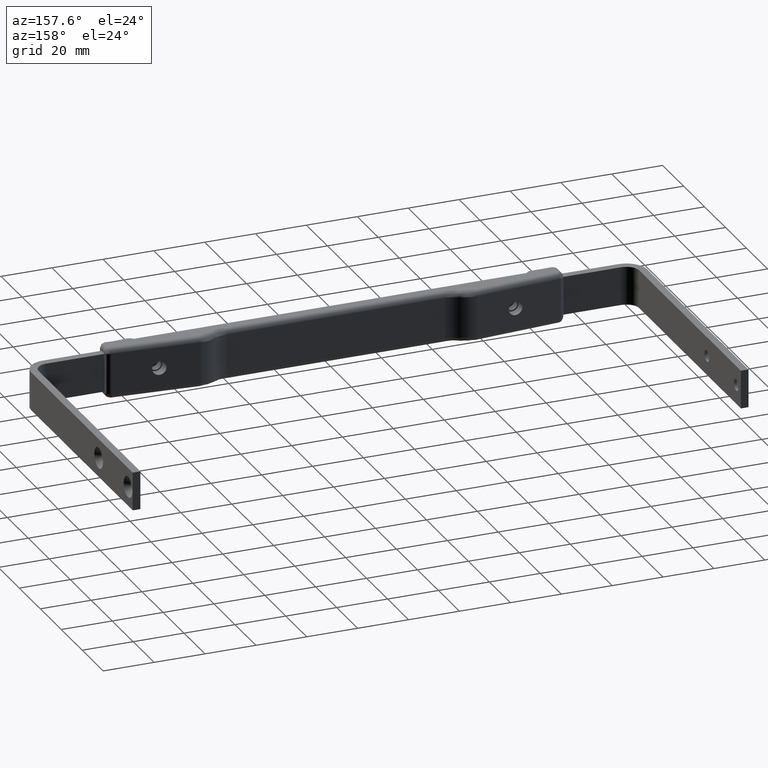
[diagram: clean part render]
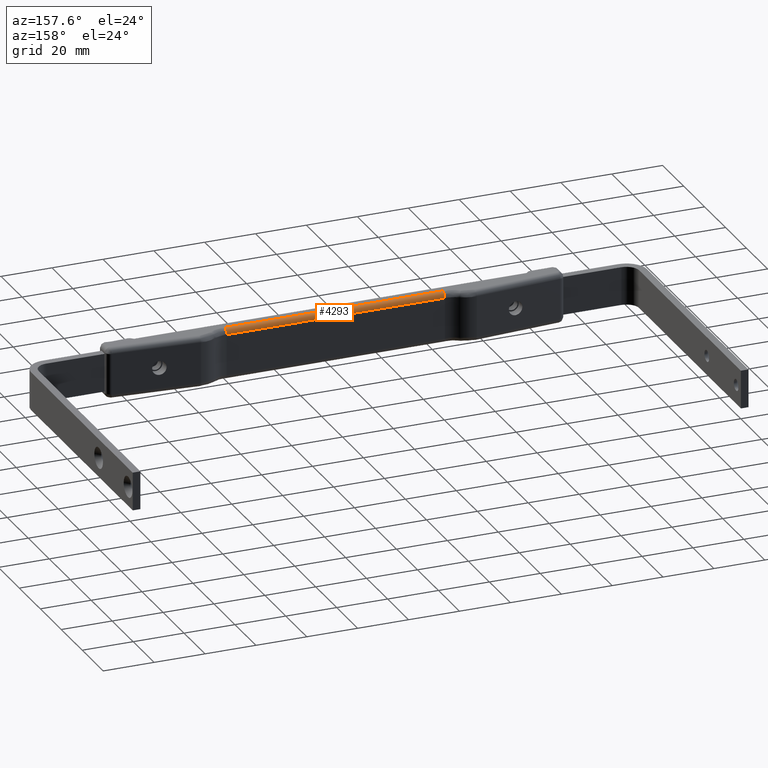
[diagram: same view with one face highlighted and labeled with its STEP entity id]
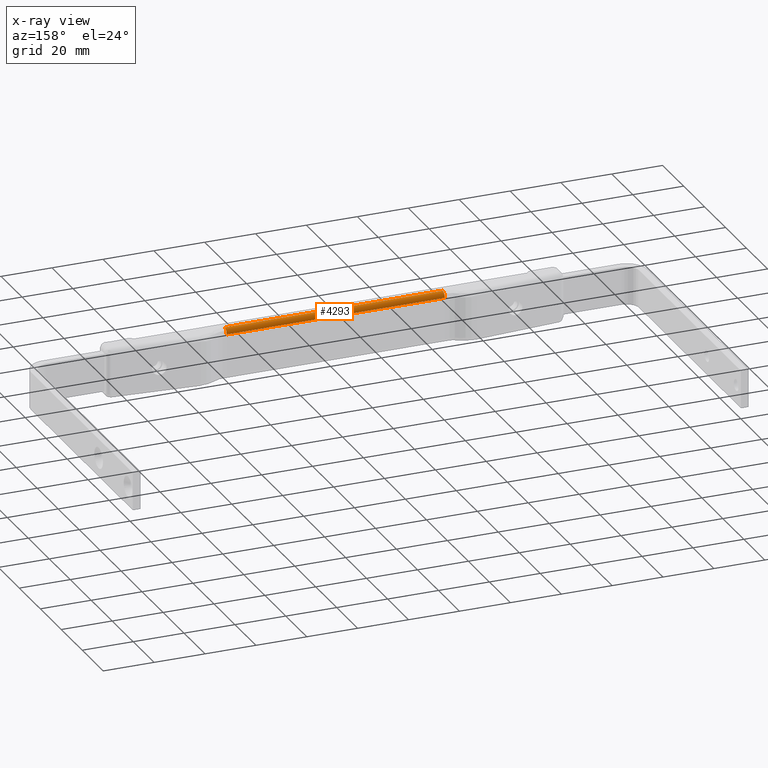
[diagram: x-ray of the same camera — body ghosted, the highlighted face saturated]
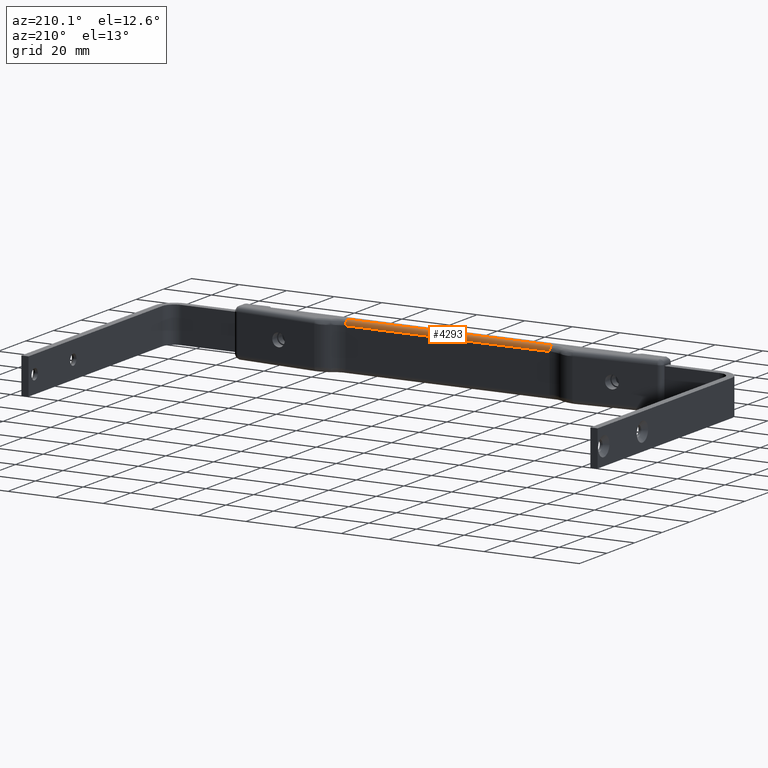
[diagram: same view with one face highlighted and labeled with its STEP entity id]
A machine part, auxiliary view. The second image highlights one B-rep face of the part: STEP entity #4293.
The next image is the same camera in x-ray: the body ghosted, the highlighted face saturated — about 0% of this face is hidden behind the body in this view.
A second angle (auxiliary view) of the same face is appended — the face is thin or edge-on in the first view.
In plain terms, the highlighted face is a freeform B-spline surface patch.
Its self-contained STEP definition (entity closure, byte-faithful):
#4202=CARTESIAN_POINT('',(-42.858346247147253,10.0,-3.0));
#4203=VERTEX_POINT('',#4202);
#4204=CARTESIAN_POINT('',(-42.858346247147253,8.0,-5.0));
#4205=VERTEX_POINT('',#4204);
#4206=CARTESIAN_POINT('',(-42.858346247147253,10.0,-3.0));
#4207=CARTESIAN_POINT('',(-42.858346247147246,10.000000000000002,-5.000000000000001));
#4208=CARTESIAN_POINT('',(-42.858346247147253,8.0,-5.0));
#4216=(BOUNDED_CURVE()B_SPLINE_CURVE(2,(#4206,#4207,#4208),.UNSPECIFIED.,.F.,.U.)CURVE()GEOMETRIC_REPRESENTATION_ITEM()QUASI_UNIFORM_CURVE()RATIONAL_B_SPLINE_CURVE((1.0,0.707106781186548,1.0))REPRESENTATION_ITEM(''));
#4217=EDGE_CURVE('',#4203,#4205,#4216,.T.);
#4249=CARTESIAN_POINT('',(-45.001263559504622,9.999314649951113,-2.947646103384253));
#4250=CARTESIAN_POINT('',(45.054836492313541,9.999314649951113,-2.947646103384253));
#4251=CARTESIAN_POINT('',(-45.001263559504615,10.056984520332525,-5.149969601109443));
#4252=CARTESIAN_POINT('',(45.054836492313534,10.056984520332525,-5.149969601109443));
#4253=CARTESIAN_POINT('',(-45.001263559504622,7.859359848748033,-4.995048958761621));
#4254=CARTESIAN_POINT('',(45.054836492313541,7.859359848748033,-4.995048958761621));
#4262=(BOUNDED_SURFACE()B_SPLINE_SURFACE(1,2,((#4249,#4251,#4253),(#4250,#4252,#4254)),.UNSPECIFIED.,.F.,.F.,.U.)B_SPLINE_SURFACE_WITH_KNOTS((2,2),(3,3),(0.0,90.056100051818163),(0.0,3.542284688176727),.UNSPECIFIED.)GEOMETRIC_REPRESENTATION_ITEM()RATIONAL_B_SPLINE_SURFACE(((1.0,0.670944223154768,0.996392648609106),(1.0,0.670944223154768,0.996392648609106)))REPRESENTATION_ITEM('')SURFACE());
#4263=CARTESIAN_POINT('',(42.858346247147253,10.0,-3.0));
#4264=VERTEX_POINT('',#4263);
#4265=CARTESIAN_POINT('',(42.858346247147253,8.0,-5.0));
#4266=VERTEX_POINT('',#4265);
#4267=CARTESIAN_POINT('',(42.858346247147253,10.0,-3.0));
#4268=CARTESIAN_POINT('',(42.858346247147246,10.000000000000002,-5.000000000000001));
#4269=CARTESIAN_POINT('',(42.858346247147253,8.0,-5.0));
#4277=(BOUNDED_CURVE()B_SPLINE_CURVE(2,(#4267,#4268,#4269),.UNSPECIFIED.,.F.,.U.)CURVE()GEOMETRIC_REPRESENTATION_ITEM()QUASI_UNIFORM_CURVE()RATIONAL_B_SPLINE_CURVE((1.0,0.707106781186548,1.0))REPRESENTATION_ITEM(''));
#4278=EDGE_CURVE('',#4264,#4266,#4277,.T.);
#4279=ORIENTED_EDGE('',*,*,#4278,.T.);
#4280=CARTESIAN_POINT('',(-42.858346247147253,8.0,-5.0));
#4281=CARTESIAN_POINT('',(42.858346247147253,8.0,-5.0));
#4282=QUASI_UNIFORM_CURVE('',1,(#4280,#4281),.UNSPECIFIED.,.F.,.U.);
#4283=EDGE_CURVE('',#4205,#4266,#4282,.T.);
#4284=ORIENTED_EDGE('',*,*,#4283,.F.);
#4285=ORIENTED_EDGE('',*,*,#4217,.F.);
#4286=CARTESIAN_POINT('',(42.858346247147253,10.0,-3.0));
#4287=CARTESIAN_POINT('',(-42.858346247147253,10.0,-3.0));
#4288=QUASI_UNIFORM_CURVE('',1,(#4286,#4287),.UNSPECIFIED.,.F.,.U.);
#4289=EDGE_CURVE('',#4264,#4203,#4288,.T.);
#4290=ORIENTED_EDGE('',*,*,#4289,.F.);
#4291=EDGE_LOOP('',(#4279,#4284,#4285,#4290));
#4292=FACE_OUTER_BOUND('',#4291,.T.);
#4293=ADVANCED_FACE('',(#4292),#4262,.T.);